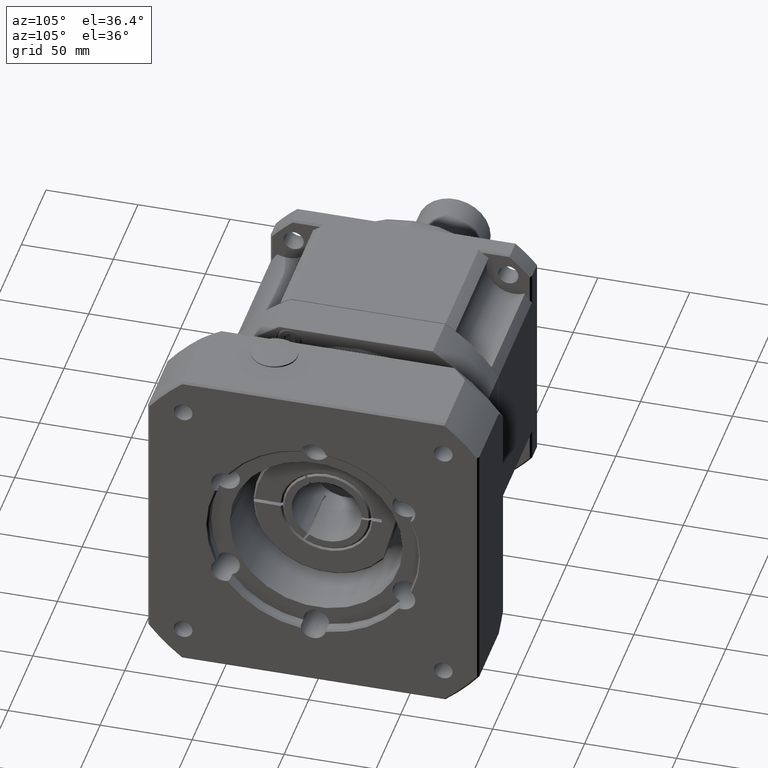
[diagram: clean part render]
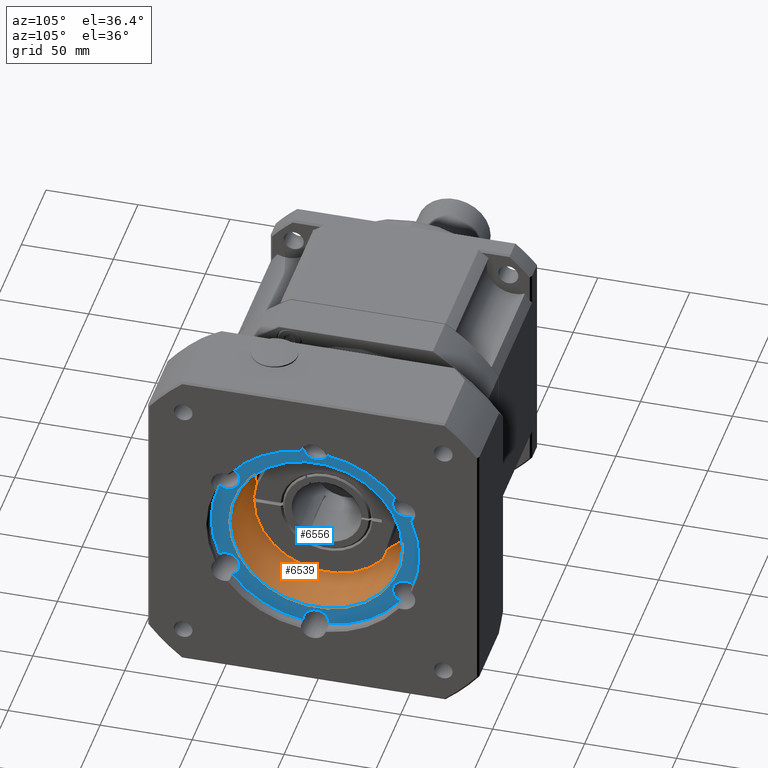
[diagram: same view with the hole feature highlighted: cylindrical wall and planar end face, labeled with their STEP entity ids]
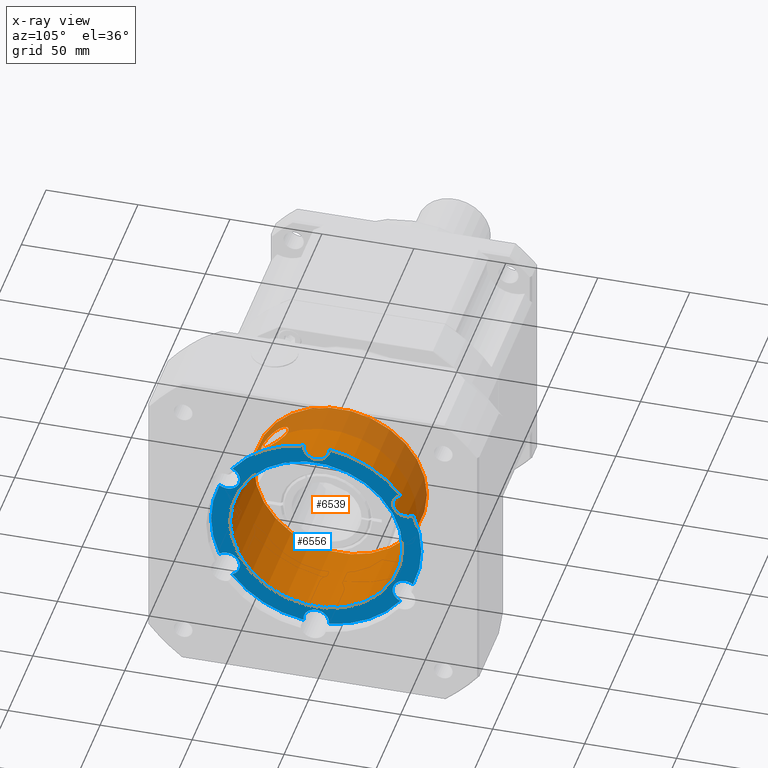
[diagram: x-ray of the same camera — body ghosted, the hole faces saturated]
A machine part, auxiliary view. The highlighted faces form one hole feature of diameter 94 mm: the cylindrical wall (entity #6539, orange) and its adjacent planar end face (entity #6556, blue) — they share a circular edge in the B-rep.
The next image is the same camera in x-ray (body ghosted, the hole faces saturated) — the bore reads through the body.
Wall:
#62=B_SPLINE_CURVE_WITH_KNOTS('',3,(#10572,#10573,#10574,#10575,#10576,
#10577,#10578,#10579,#10580,#10581,#10582,#10583,#10584,#10585,#10586,#10587,
#10588,#10589,#10590,#10591,#10592,#10593,#10594,#10595,#10596,#10597,#10598,
#10599,#10600,#10601,#10602,#10603,#10604,#10605,#10606,#10607,#10608,#10609),
 .UNSPECIFIED.,.T.,.F.,(4,2,2,2,2,2,2,2,2,2,2,2,2,2,2,2,2,2,4),(0.,0.268102709193776,
0.536205418387551,0.883514699778258,1.23082398116897,1.63440217241272,2.03798036365647,
2.31770012518091,2.45756000594313,2.59741988670535,2.73727976746757,2.8771396482298,
3.15685940975424,3.56043760099799,3.96401579224174,4.31132507363245,4.65863435502316,
4.92673706421693,5.19483977341071),.UNSPECIFIED.);
#1284=CYLINDRICAL_SURFACE('',#7144,47.);
#1452=FACE_BOUND('',#2257,.T.);
#1453=FACE_BOUND('',#2258,.T.);
#1731=FACE_OUTER_BOUND('',#2256,.T.);
#2256=EDGE_LOOP('',(#5031));
#2257=EDGE_LOOP('',(#5032));
#2258=EDGE_LOOP('',(#5033));
#2816=CIRCLE('',#7143,47.);
#2817=CIRCLE('',#7145,47.);
#3280=VERTEX_POINT('',#10566);
#3281=VERTEX_POINT('',#10569);
#3282=VERTEX_POINT('',#10571);
#3954=EDGE_CURVE('',#3280,#3280,#2816,.T.);
#3955=EDGE_CURVE('',#3281,#3281,#2817,.T.);
#3956=EDGE_CURVE('',#3282,#3282,#62,.T.);
#5031=ORIENTED_EDGE('',*,*,#3955,.F.);
#5032=ORIENTED_EDGE('',*,*,#3956,.T.);
#5033=ORIENTED_EDGE('',*,*,#3954,.F.);
#6539=ADVANCED_FACE('',(#1731,#1452,#1453),#1284,.F.);
#7143=AXIS2_PLACEMENT_3D('',#10567,#8346,#8347);
#7144=AXIS2_PLACEMENT_3D('',#10568,#8348,#8349);
#7145=AXIS2_PLACEMENT_3D('',#10570,#8350,#8351);
#8346=DIRECTION('center_axis',(1.,-5.21329617097221E-16,-1.24115431662697E-16));
#8347=DIRECTION('ref_axis',(3.63571460844978E-16,1.,1.74686654030804E-15));
#8348=DIRECTION('center_axis',(-1.,3.63571460844978E-16,1.24115431662697E-16));
#8349=DIRECTION('ref_axis',(-3.63571460844978E-16,-1.,-1.74686654030804E-15));
#8350=DIRECTION('center_axis',(-1.,3.63571460844978E-16,1.24115431662697E-16));
#8351=DIRECTION('ref_axis',(-1.24115431662696E-16,1.74686654030804E-15,
-1.));
#10566=CARTESIAN_POINT('',(-115.859385272837,-197.310004596179,-77.0025259929325));
#10567=CARTESIAN_POINT('Origin',(-115.859385272837,-150.310004596179,-77.0025259929324));
#10568=CARTESIAN_POINT('Origin',(-91.7093852728371,-150.310004596179,-77.0025259929324));
#10569=CARTESIAN_POINT('',(-66.5593852728371,-197.310004596179,-77.0025259929325));
#10570=CARTESIAN_POINT('Origin',(-66.5593852728371,-150.310004596179,-77.0025259929324));
#10571=CARTESIAN_POINT('',(-98.0593852728371,-174.060004596179,-36.4446969090182));
#10572=CARTESIAN_POINT('Ctrl Pts',(-98.0593852728371,-174.060004596179,
-36.4446969090182));
#10573=CARTESIAN_POINT('Ctrl Pts',(-98.9530609701497,-174.060004596179,
-36.4446969090182));
#10574=CARTESIAN_POINT('Ctrl Pts',(-99.8965238469735,-174.236321841088,
-36.5464861418949));
#10575=CARTESIAN_POINT('Ctrl Pts',(-101.608074218436,-174.921040437395,
-36.9593400377982));
#10576=CARTESIAN_POINT('Ctrl Pts',(-102.376249870792,-175.428239497563,
-37.2720307493376));
#10577=CARTESIAN_POINT('Ctrl Pts',(-103.754809049216,-176.700707614643,
-38.1018089766628));
#10578=CARTESIAN_POINT('Ctrl Pts',(-104.367580219235,-177.595917893439,
-38.7161484754874));
#10579=CARTESIAN_POINT('Ctrl Pts',(-105.143785413376,-179.46635823252,-40.1206222782233));
#10580=CARTESIAN_POINT('Ctrl Pts',(-105.309385272837,-180.439833668548,
-40.9118947458401));
#10581=CARTESIAN_POINT('Ctrl Pts',(-105.309385272837,-182.321155256018,
-42.5627820970222));
#10582=CARTESIAN_POINT('Ctrl Pts',(-105.089460333903,-183.367344735294,
-43.5643759407146));
#10583=CARTESIAN_POINT('Ctrl Pts',(-104.22224427367,-185.269016411397,-45.5578904481645));
#10584=CARTESIAN_POINT('Ctrl Pts',(-103.578954568948,-186.126323452259,
-46.5498086053726));
#10585=CARTESIAN_POINT('Ctrl Pts',(-102.231867165113,-187.283391826832,
-47.9760914179332));
#10586=CARTESIAN_POINT('Ctrl Pts',(-101.529965835036,-187.734499140422,
-48.5649744523683));
#10587=CARTESIAN_POINT('Ctrl Pts',(-100.316355604931,-188.213461955785,
-49.2104461535868));
#10588=CARTESIAN_POINT('Ctrl Pts',(-99.8848858599969,-188.341218117939,
-49.3864303354832));
#10589=CARTESIAN_POINT('Ctrl Pts',(-98.9895500081784,-188.514531611194,
-49.6266961993703));
#10590=CARTESIAN_POINT('Ctrl Pts',(-98.5255848753778,-188.560004596179,
-49.6906695931928));
#10591=CARTESIAN_POINT('Ctrl Pts',(-97.5931856702964,-188.560004596179,
-49.6906695931928));
#10592=CARTESIAN_POINT('Ctrl Pts',(-97.1292205374958,-188.514531611194,
-49.6266961993703));
#10593=CARTESIAN_POINT('Ctrl Pts',(-96.2338846856773,-188.341218117939,
-49.3864303354832));
#10594=CARTESIAN_POINT('Ctrl Pts',(-95.8024149407437,-188.213461955785,
-49.2104461535868));
#10595=CARTESIAN_POINT('Ctrl Pts',(-94.5888047106387,-187.734499140422,
-48.5649744523683));
#10596=CARTESIAN_POINT('Ctrl Pts',(-93.8869033805611,-187.283391826832,
-47.9760914179332));
#10597=CARTESIAN_POINT('Ctrl Pts',(-92.5398159767262,-186.126323452259,
-46.5498086053726));
#10598=CARTESIAN_POINT('Ctrl Pts',(-91.8965262720047,-185.269016411397,
-45.5578904481645));
#10599=CARTESIAN_POINT('Ctrl Pts',(-91.0293102117709,-183.367344735294,
-43.5643759407146));
#10600=CARTESIAN_POINT('Ctrl Pts',(-90.8093852728371,-182.321155256018,
-42.5627820970222));
#10601=CARTESIAN_POINT('Ctrl Pts',(-90.8093852728371,-180.439833668548,
-40.9118947458401));
#10602=CARTESIAN_POINT('Ctrl Pts',(-90.9749851322978,-179.46635823252,-40.1206222782233));
#10603=CARTESIAN_POINT('Ctrl Pts',(-91.7511903264391,-177.595917893439,
-38.7161484754874));
#10604=CARTESIAN_POINT('Ctrl Pts',(-92.3639614964583,-176.700707614643,
-38.1018089766628));
#10605=CARTESIAN_POINT('Ctrl Pts',(-93.7425206748825,-175.428239497563,
-37.2720307493376));
#10606=CARTESIAN_POINT('Ctrl Pts',(-94.5106963272377,-174.921040437395,
-36.9593400377982));
#10607=CARTESIAN_POINT('Ctrl Pts',(-96.2222466987007,-174.236321841088,
-36.5464861418949));
#10608=CARTESIAN_POINT('Ctrl Pts',(-97.1657095755245,-174.060004596179,
-36.4446969090182));
#10609=CARTESIAN_POINT('Ctrl Pts',(-98.0593852728371,-174.060004596179,
-36.4446969090182));
End face:
#1463=FACE_BOUND('',#2285,.T.);
#1748=FACE_OUTER_BOUND('',#2284,.T.);
#2284=EDGE_LOOP('',(#5074,#5075,#5076,#5077,#5078,#5079,#5080,#5081,#5082,
#5083,#5084,#5085));
#2285=EDGE_LOOP('',(#5086));
#2778=CIRCLE('',#7083,7.);
#2799=CIRCLE('',#7107,7.);
#2801=CIRCLE('',#7111,7.);
#2804=CIRCLE('',#7116,7.);
#2807=CIRCLE('',#7121,7.);
#2810=CIRCLE('',#7126,7.);
#2817=CIRCLE('',#7145,47.);
#2829=CIRCLE('',#7174,57.15);
#2830=CIRCLE('',#7175,57.15);
#2831=CIRCLE('',#7176,57.15);
#2832=CIRCLE('',#7177,57.15);
#2833=CIRCLE('',#7178,57.15);
#2834=CIRCLE('',#7179,57.15);
#3229=VERTEX_POINT('',#10368);
#3230=VERTEX_POINT('',#10370);
#3255=VERTEX_POINT('',#10432);
#3256=VERTEX_POINT('',#10434);
#3259=VERTEX_POINT('',#10450);
#3260=VERTEX_POINT('',#10452);
#3264=VERTEX_POINT('',#10470);
#3265=VERTEX_POINT('',#10472);
#3269=VERTEX_POINT('',#10490);
#3270=VERTEX_POINT('',#10492);
#3273=VERTEX_POINT('',#10505);
#3274=VERTEX_POINT('',#10507);
#3281=VERTEX_POINT('',#10569);
#3881=EDGE_CURVE('',#3230,#3229,#2778,.T.);
#3910=EDGE_CURVE('',#3256,#3255,#2799,.T.);
#3916=EDGE_CURVE('',#3260,#3259,#2801,.T.);
#3923=EDGE_CURVE('',#3265,#3264,#2804,.T.);
#3930=EDGE_CURVE('',#3270,#3269,#2807,.T.);
#3936=EDGE_CURVE('',#3274,#3273,#2810,.T.);
#3955=EDGE_CURVE('',#3281,#3281,#2817,.T.);
#3970=EDGE_CURVE('',#3260,#3264,#2829,.T.);
#3971=EDGE_CURVE('',#3230,#3259,#2830,.T.);
#3972=EDGE_CURVE('',#3256,#3229,#2831,.T.);
#3973=EDGE_CURVE('',#3274,#3255,#2832,.T.);
#3974=EDGE_CURVE('',#3270,#3273,#2833,.T.);
#3975=EDGE_CURVE('',#3265,#3269,#2834,.T.);
#5074=ORIENTED_EDGE('',*,*,#3923,.T.);
#5075=ORIENTED_EDGE('',*,*,#3970,.F.);
#5076=ORIENTED_EDGE('',*,*,#3916,.T.);
#5077=ORIENTED_EDGE('',*,*,#3971,.F.);
#5078=ORIENTED_EDGE('',*,*,#3881,.T.);
#5079=ORIENTED_EDGE('',*,*,#3972,.F.);
#5080=ORIENTED_EDGE('',*,*,#3910,.T.);
#5081=ORIENTED_EDGE('',*,*,#3973,.F.);
#5082=ORIENTED_EDGE('',*,*,#3936,.T.);
#5083=ORIENTED_EDGE('',*,*,#3974,.F.);
#5084=ORIENTED_EDGE('',*,*,#3930,.T.);
#5085=ORIENTED_EDGE('',*,*,#3975,.F.);
#5086=ORIENTED_EDGE('',*,*,#3955,.T.);
#6259=PLANE('',#7173);
#6556=ADVANCED_FACE('',(#1748,#1463),#6259,.F.);
#7083=AXIS2_PLACEMENT_3D('',#10371,#8208,#8209);
#7107=AXIS2_PLACEMENT_3D('',#10435,#8262,#8263);
#7111=AXIS2_PLACEMENT_3D('',#10453,#8272,#8273);
#7116=AXIS2_PLACEMENT_3D('',#10473,#8284,#8285);
#7121=AXIS2_PLACEMENT_3D('',#10493,#8296,#8297);
#7126=AXIS2_PLACEMENT_3D('',#10508,#8308,#8309);
#7145=AXIS2_PLACEMENT_3D('',#10570,#8350,#8351);
#7173=AXIS2_PLACEMENT_3D('',#10648,#8408,#8409);
#7174=AXIS2_PLACEMENT_3D('',#10649,#8410,#8411);
#7175=AXIS2_PLACEMENT_3D('',#10650,#8412,#8413);
#7176=AXIS2_PLACEMENT_3D('',#10651,#8414,#8415);
#7177=AXIS2_PLACEMENT_3D('',#10652,#8416,#8417);
#7178=AXIS2_PLACEMENT_3D('',#10653,#8418,#8419);
#7179=AXIS2_PLACEMENT_3D('',#10654,#8420,#8421);
#8208=DIRECTION('center_axis',(-1.,3.63571460844978E-16,1.24115431662697E-16));
#8209=DIRECTION('ref_axis',(-3.89426976320059E-16,-0.866025403784439,0.499999999999999));
#8262=DIRECTION('center_axis',(-1.,3.63571460844978E-16,1.24115431662697E-16));
#8263=DIRECTION('ref_axis',(-5.13542407982755E-16,-0.866025403784438,-0.500000000000001));
#8272=DIRECTION('center_axis',(-1.,3.63571460844978E-16,1.24115431662697E-16));
#8273=DIRECTION('ref_axis',(1.24115431662696E-16,-1.74686654030804E-15,
1.));
#8284=DIRECTION('center_axis',(-1.,3.63571460844978E-16,1.24115431662697E-16));
#8285=DIRECTION('ref_axis',(5.13542407982756E-16,0.866025403784438,0.500000000000001));
#8296=DIRECTION('center_axis',(-1.,3.63571460844978E-16,1.24115431662697E-16));
#8297=DIRECTION('ref_axis',(3.89426976320059E-16,0.866025403784439,-0.499999999999999));
#8308=DIRECTION('center_axis',(-1.,3.63571460844978E-16,1.24115431662697E-16));
#8309=DIRECTION('ref_axis',(-1.24115431662696E-16,1.58826325107587E-15,
-1.));
#8350=DIRECTION('center_axis',(-1.,3.63571460844978E-16,1.24115431662697E-16));
#8351=DIRECTION('ref_axis',(-1.24115431662696E-16,1.74686654030804E-15,
-1.));
#8408=DIRECTION('center_axis',(-1.,3.63571460844978E-16,1.24115431662697E-16));
#8409=DIRECTION('ref_axis',(0.,2.8421709430404E-15,-1.));
#8410=DIRECTION('center_axis',(-1.,3.63571460844978E-16,1.24115431662697E-16));
#8411=DIRECTION('ref_axis',(-1.24115431662696E-16,1.74686654030804E-15,
-1.));
#8412=DIRECTION('center_axis',(-1.,3.63571460844978E-16,1.24115431662697E-16));
#8413=DIRECTION('ref_axis',(-1.24115431662696E-16,1.74686654030804E-15,
-1.));
#8414=DIRECTION('center_axis',(-1.,3.63571460844978E-16,1.24115431662697E-16));
#8415=DIRECTION('ref_axis',(-1.24115431662696E-16,1.74686654030804E-15,
-1.));
#8416=DIRECTION('center_axis',(-1.,3.63571460844978E-16,1.24115431662697E-16));
#8417=DIRECTION('ref_axis',(-1.24115431662696E-16,1.74686654030804E-15,
-1.));
#8418=DIRECTION('center_axis',(-1.,3.63571460844978E-16,1.24115431662697E-16));
#8419=DIRECTION('ref_axis',(-1.24115431662696E-16,1.74686654030804E-15,
-1.));
#8420=DIRECTION('center_axis',(-1.,3.63571460844978E-16,1.24115431662697E-16));
#8421=DIRECTION('ref_axis',(-1.24115431662696E-16,1.74686654030804E-15,
-1.));
#10368=CARTESIAN_POINT('',(-66.5593852728371,-202.915909441311,-54.6700098914058));
#10370=CARTESIAN_POINT('',(-66.5593852728371,-195.953483293092,-42.6107340587449));
#10371=CARTESIAN_POINT('Origin',(-66.5593852728371,-198.807427208108,-49.0025259929325));
#10432=CARTESIAN_POINT('',(-66.5593852728371,-195.953483293092,-111.39431792712));
#10434=CARTESIAN_POINT('',(-66.5593852728371,-202.915909441311,-99.3350420944592));
#10435=CARTESIAN_POINT('Origin',(-66.5593852728371,-198.807427208108,-105.002525992932));
#10450=CARTESIAN_POINT('',(-66.5593852728371,-157.272430744398,-20.2782179572181));
#10452=CARTESIAN_POINT('',(-66.5593852728371,-143.347578447961,-20.2782179572181));
#10453=CARTESIAN_POINT('Origin',(-66.5593852728371,-150.310004596179,-21.0025259929324));
#10470=CARTESIAN_POINT('',(-66.5593852728371,-104.666525899266,-42.6107340587448));
#10472=CARTESIAN_POINT('',(-66.5593852728371,-97.7040997510475,-54.6700098914057));
#10473=CARTESIAN_POINT('Origin',(-66.5593852728371,-101.812581984251,-49.0025259929324));
#10490=CARTESIAN_POINT('',(-66.5593852728371,-97.7040997510474,-99.335042094459));
#10492=CARTESIAN_POINT('',(-66.5593852728371,-104.666525899266,-111.39431792712));
#10493=CARTESIAN_POINT('Origin',(-66.5593852728371,-101.812581984251,-105.002525992932));
#10505=CARTESIAN_POINT('',(-66.5593852728371,-143.34757844796,-133.726834028647));
#10507=CARTESIAN_POINT('',(-66.5593852728371,-157.272430744398,-133.726834028647));
#10508=CARTESIAN_POINT('Origin',(-66.5593852728371,-150.310004596179,-133.002525992932));
#10569=CARTESIAN_POINT('',(-66.5593852728371,-197.310004596179,-77.0025259929325));
#10570=CARTESIAN_POINT('Origin',(-66.5593852728371,-150.310004596179,-77.0025259929324));
#10648=CARTESIAN_POINT('Origin',(-66.5593852728371,-197.310004596179,-77.0025259929325));
#10649=CARTESIAN_POINT('Origin',(-66.5593852728371,-150.310004596179,-77.0025259929324));
#10650=CARTESIAN_POINT('Origin',(-66.5593852728371,-150.310004596179,-77.0025259929324));
#10651=CARTESIAN_POINT('Origin',(-66.5593852728371,-150.310004596179,-77.0025259929324));
#10652=CARTESIAN_POINT('Origin',(-66.5593852728371,-150.310004596179,-77.0025259929324));
#10653=CARTESIAN_POINT('Origin',(-66.5593852728371,-150.310004596179,-77.0025259929324));
#10654=CARTESIAN_POINT('Origin',(-66.5593852728371,-150.310004596179,-77.0025259929324));